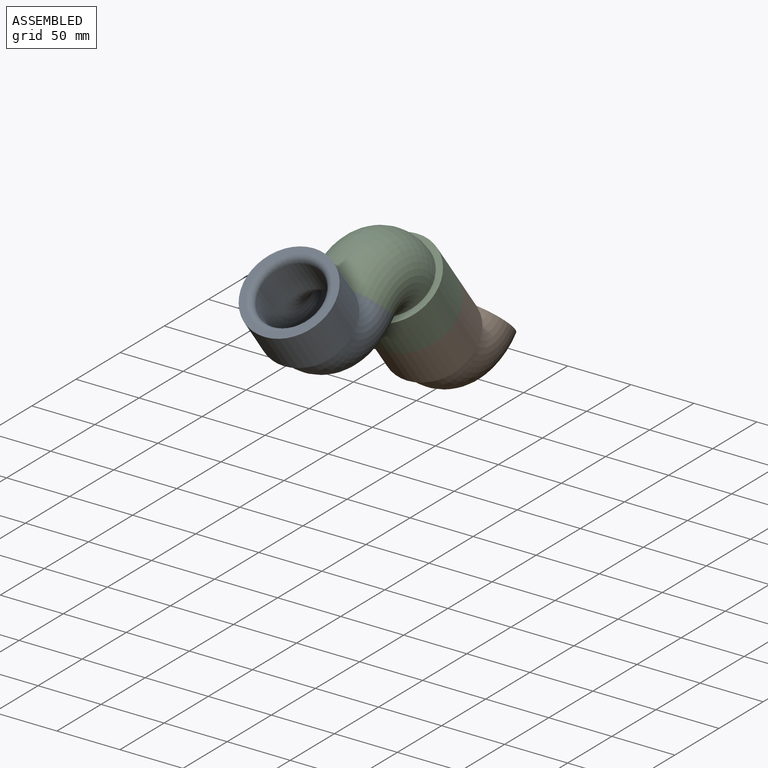
[diagram: assembled view]
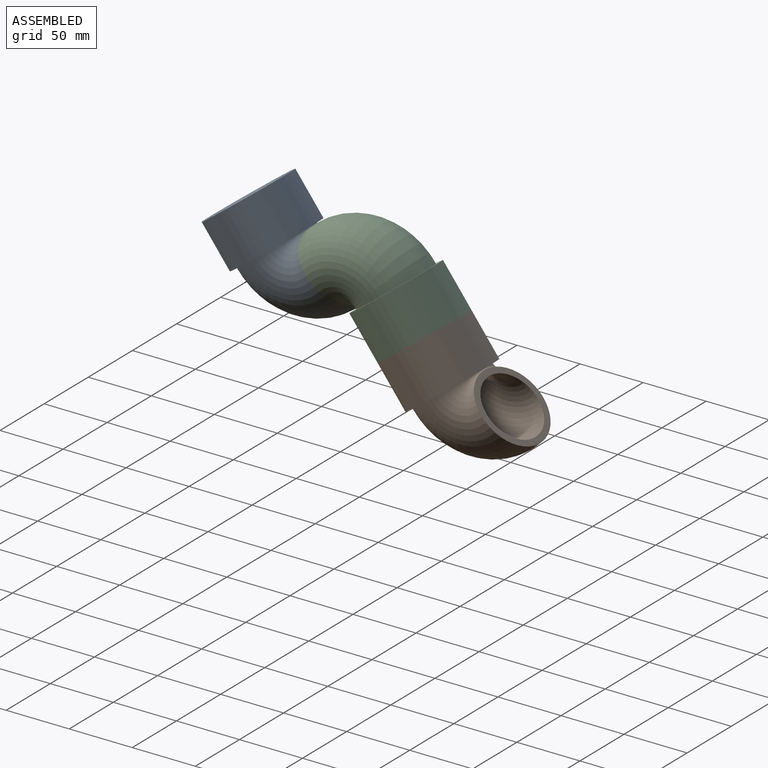
[diagram: assembled view, second angle]
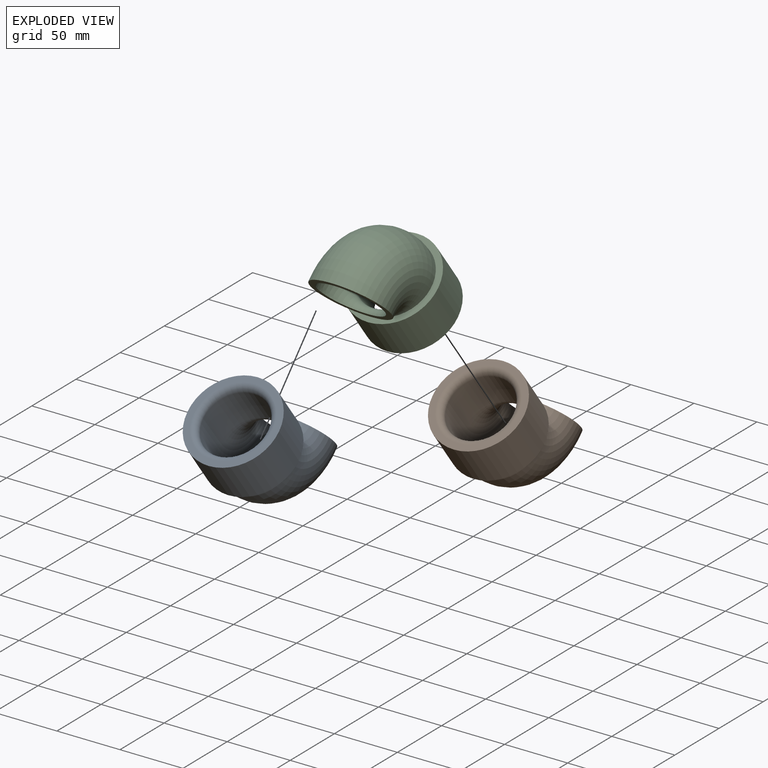
[diagram: exploded view]
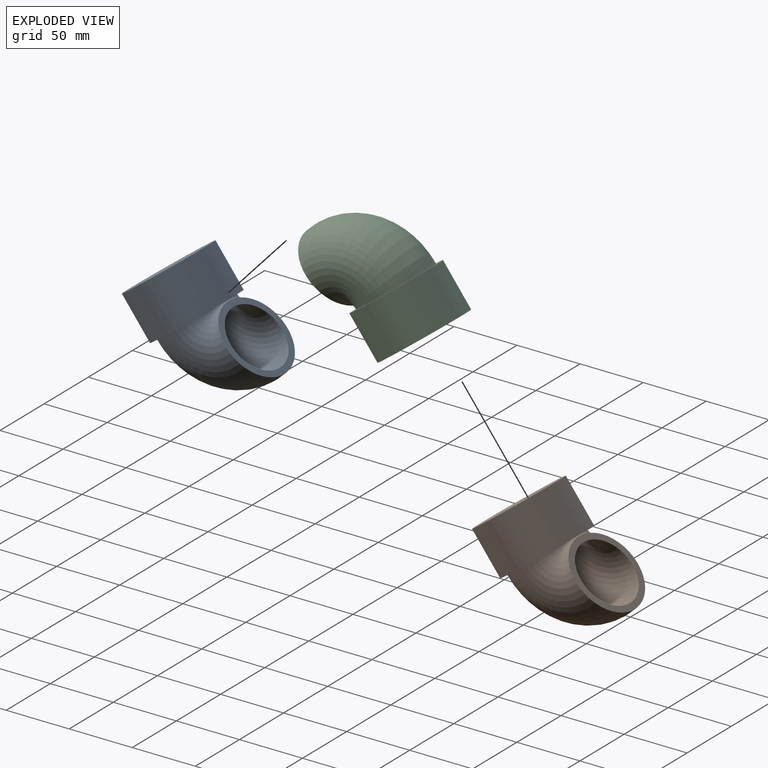
[diagram: exploded view, second angle]
ASSEMBLY  parts=3 mates=2
PART A: 8 faces, bbox 70x124.9x96.9 mm
  f0: plane 70x53.62mm, normal (0,-0.64,0.77), area 1021mm2, adj f2,f7
  f1: plane 70x53.62mm, normal (0,0.64,-0.77), area 1021mm2, adj f2,f4
  f2: cylinder r=35mm len=77.41mm, axis (0,0.64,-0.77), area 8136.7mm2, adj f0,f1
  f3: torus R=30.96mm, axis (-1,0,0), area 8489.1mm2, adj f5,f6
  f4: torus R=30.96mm, axis (-1,0,0), area 10186.9mm2, adj f1,f5
  f5: plane 60x45.96mm, normal (0,0.64,0.77), area 863.9mm2, adj f3,f4
  f6: cylinder r=25mm len=58.87mm, axis (0,0.64,-0.77), area 5026.5mm2, adj f3,f7
  f7: torus R=30mm, axis (0,0.64,-0.77), area 1323.4mm2, adj f0,f6
PART B: same geometry as A
PART C: same geometry as A
PLACE A rot(axis=(-1,0,0),2.8deg) t=(30.95,64.31,7.76)mm
PLACE B rot(axis=(-1,0,0),2.8deg) t=(30.95,203.77,-55.93)mm
PLACE C rot(axis=(1,0,0),177.2deg) t=(30.95,112.79,27.5)mm
MATE fastened C.f5 <-> A.f5  axis (0,-0.68,-0.73) through (30.95,88.55,17.63)mm
MATE fastened B.f2 <-> C.f2  axis (0,-0.6,0.8) through (30.95,158.28,-14.21)mm
